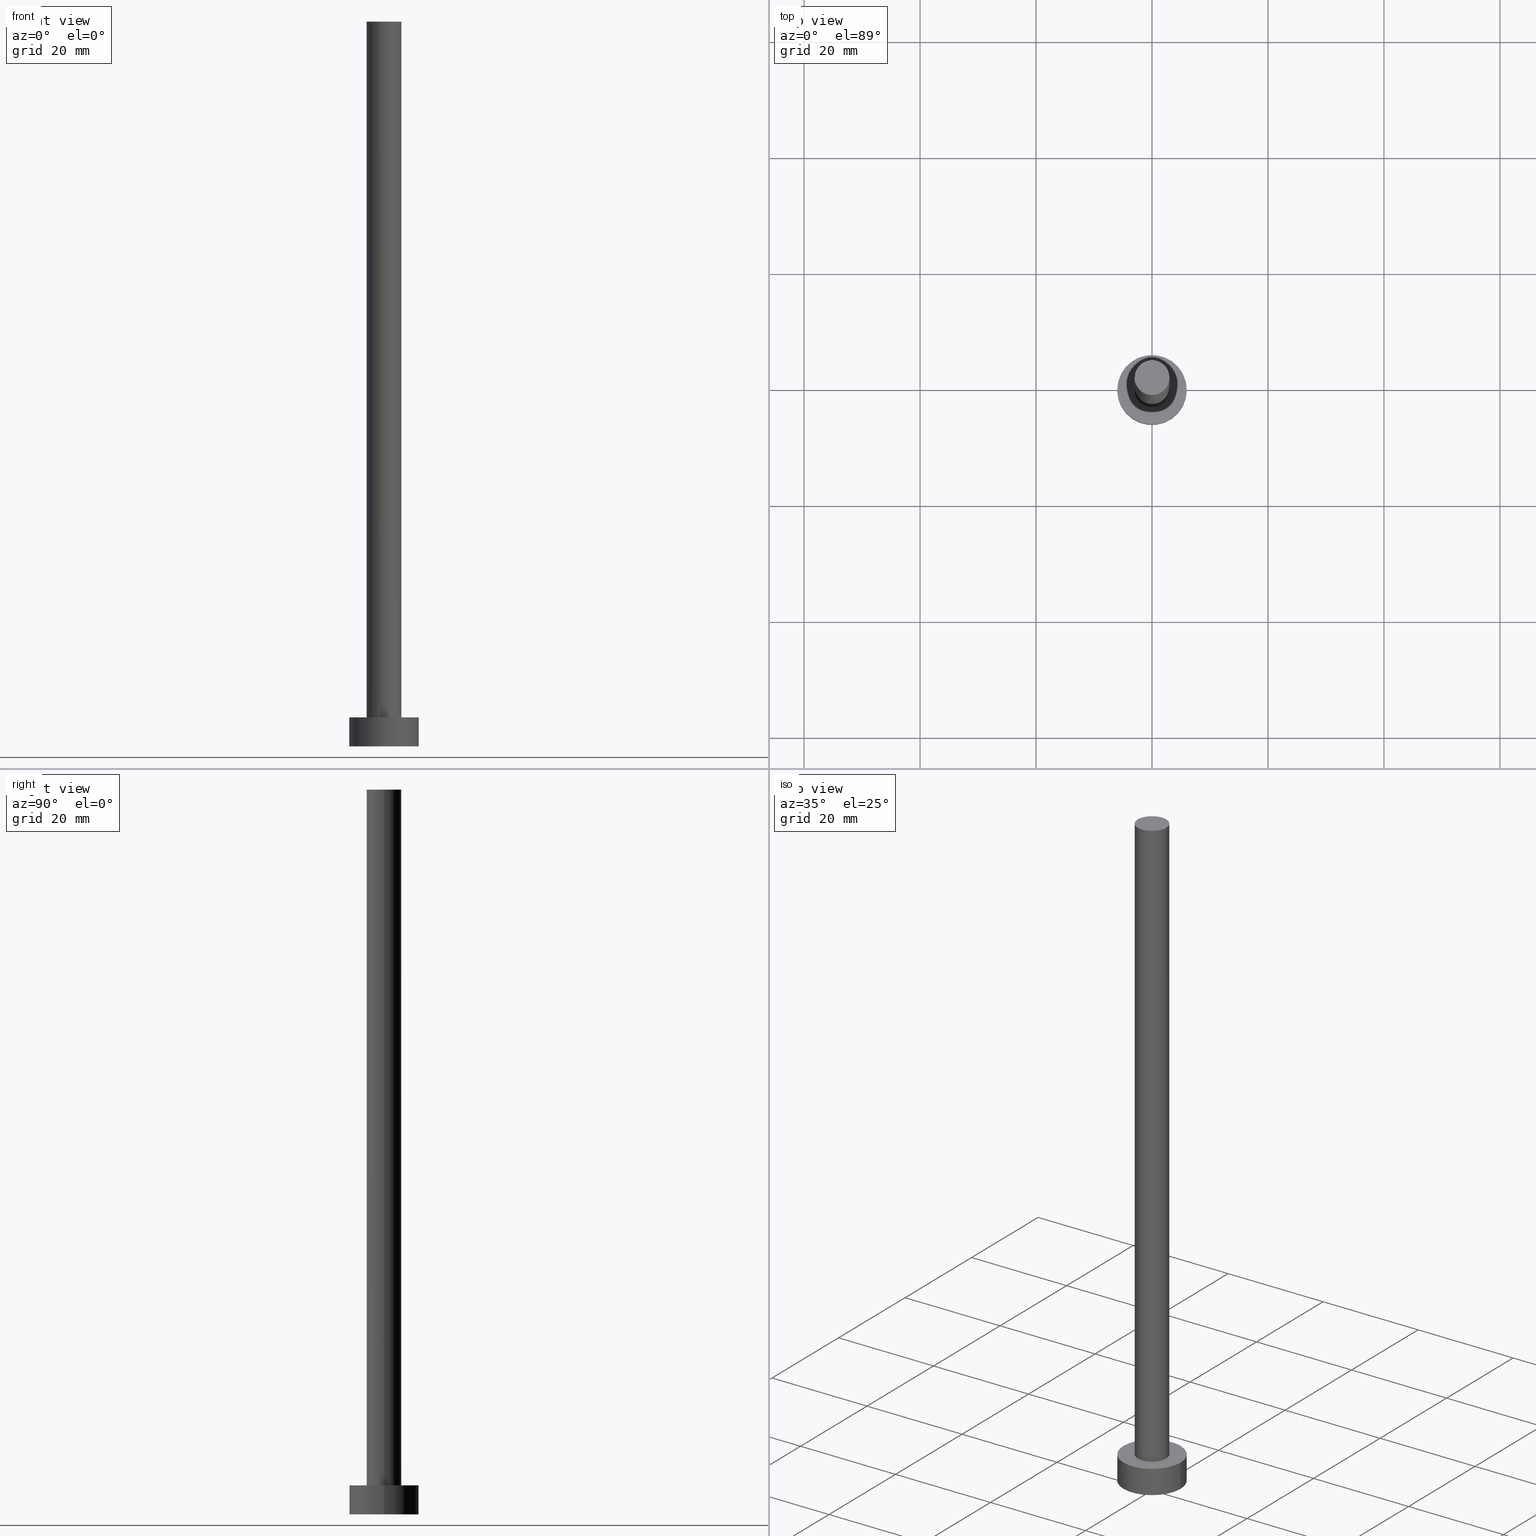
[diagram: canonical four-view strip — front | top / right | iso, engineering-drawing reading convention]
A machine part, canonical four-view strip (front | top / right | iso — engineering-drawing reading convention). The complete STEP part file that produces these views, byte-faithful:
ISO-10303-21;
HEADER;
FILE_DESCRIPTION (( 'STEP AP203' ),
    '1' );
FILE_NAME ('b072.STEP',
    '2023-02-12T12:19:38',
    ( '' ),
    ( '' ),
    'SwSTEP 2.0',
    'SolidWorks 2019',
    '' );
FILE_SCHEMA (( 'CONFIG_CONTROL_DESIGN' ));
ENDSEC;

DATA;
#1 = APPROVAL_DATE_TIME ( #70, #23 ) ;
#2 = CC_DESIGN_APPROVAL ( #199, ( #118 ) ) ;
#3 = CIRCLE ( 'NONE', #20, 3.000000000000000444 ) ;
#4 = DIRECTION ( 'NONE',  ( 0.000000000000000000, 0.000000000000000000, 1.000000000000000000 ) ) ;
#5 = ORIENTED_EDGE ( 'NONE', *, *, #74, .F. ) ;
#6 = DIRECTION ( 'NONE',  ( -0.000000000000000000, -0.000000000000000000, -1.000000000000000000 ) ) ;
#7 = CARTESIAN_POINT ( 'NONE',  ( 0.000000000000000000, 0.000000000000000000, 5.000000000000000000 ) ) ;
#8 = ORIENTED_EDGE ( 'NONE', *, *, #34, .F. ) ;
#9 = CC_DESIGN_PERSON_AND_ORGANIZATION_ASSIGNMENT ( #176, #235, ( #116 ) ) ;
#10 = CARTESIAN_POINT ( 'NONE',  ( 0.000000000000000000, 0.000000000000000000, 5.000000000000000000 ) ) ;
#11 = DIRECTION ( 'NONE',  ( 1.000000000000000000, 0.000000000000000000, 0.000000000000000000 ) ) ;
#12 = FACE_OUTER_BOUND ( 'NONE', #142, .T. ) ;
#13 = ADVANCED_FACE ( 'NONE', ( #167, #50 ), #203, .T. ) ;
#14 = DIRECTION ( 'NONE',  ( 1.000000000000000000, 0.000000000000000000, -0.000000000000000000 ) ) ;
#15 = DIRECTION ( 'NONE',  ( 0.000000000000000000, 0.000000000000000000, 1.000000000000000000 ) ) ;
#16 = AXIS2_PLACEMENT_3D ( 'NONE', #126, #26, #48 ) ;
#17 = COORDINATED_UNIVERSAL_TIME_OFFSET ( 1, 0, .AHEAD. ) ;
#18 = CALENDAR_DATE ( 2023, 12, 2 ) ;
#19 = EDGE_LOOP ( 'NONE', ( #98, #159, #242, #239 ) ) ;
#20 = AXIS2_PLACEMENT_3D ( 'NONE', #165, #101, #180 ) ;
#21 = APPLICATION_PROTOCOL_DEFINITION ( 'international standard', 'config_control_design', 1994, #125 ) ;
#22 = ORIENTED_EDGE ( 'NONE', *, *, #84, .F. ) ;
#23 = APPROVAL ( #40, 'NEUR�EN�' ) ;
#24 = VERTEX_POINT ( 'NONE', #86 ) ;
#25 =( GEOMETRIC_REPRESENTATION_CONTEXT ( 3 ) GLOBAL_UNCERTAINTY_ASSIGNED_CONTEXT ( ( #108 ) ) GLOBAL_UNIT_ASSIGNED_CONTEXT ( ( #170, #149, #191 ) ) REPRESENTATION_CONTEXT ( 'NONE', 'WORKASPACE' ) );
#26 = DIRECTION ( 'NONE',  ( 0.000000000000000000, 0.000000000000000000, 1.000000000000000000 ) ) ;
#27 = ORIENTED_EDGE ( 'NONE', *, *, #160, .T. ) ;
#28 = EDGE_LOOP ( 'NONE', ( #136, #27, #182, #8 ) ) ;
#29 = ORIENTED_EDGE ( 'NONE', *, *, #209, .T. ) ;
#30 = PRODUCT ( 'b072', 'b072', '', ( #252 ) ) ;
#31 = CARTESIAN_POINT ( 'NONE',  ( 0.000000000000000000, 0.000000000000000000, 125.0000000000000000 ) ) ;
#32 = AXIS2_PLACEMENT_3D ( 'NONE', #132, #15, #169 ) ;
#33 = CARTESIAN_POINT ( 'NONE',  ( 0.000000000000000000, 0.000000000000000000, 125.0000000000000000 ) ) ;
#34 = EDGE_CURVE ( 'NONE', #218, #121, #43, .T. ) ;
#35 = CARTESIAN_POINT ( 'NONE',  ( 6.000000000000000888, 7.347880794884120722E-16, 5.000000000000000000 ) ) ;
#36 = CARTESIAN_POINT ( 'NONE',  ( -3.000000000000000444, 0.000000000000000000, 5.000000000000000000 ) ) ;
#37 = AXIS2_PLACEMENT_3D ( 'NONE', #31, #91, #65 ) ;
#38 = PERSON_AND_ORGANIZATION ( #188, #254 ) ;
#39 = PERSON_AND_ORGANIZATION ( #188, #254 ) ;
#40 = APPROVAL_STATUS ( 'not_yet_approved' ) ;
#41 = EDGE_LOOP ( 'NONE', ( #145, #105, #202, #226 ) ) ;
#42 = PRODUCT_DEFINITION_FORMATION_WITH_SPECIFIED_SOURCE ( 'LIBOVOLN�', '', #30, .NOT_KNOWN. ) ;
#43 = LINE ( 'NONE', #82, #232 ) ;
#44 = EDGE_CURVE ( 'NONE', #163, #227, #141, .T. ) ;
#45 = DIRECTION ( 'NONE',  ( 1.000000000000000000, 0.000000000000000000, 0.000000000000000000 ) ) ;
#46 = CIRCLE ( 'NONE', #32, 3.000000000000000444 ) ;
#47 = PLANE ( 'NONE',  #231 ) ;
#48 = DIRECTION ( 'NONE',  ( 1.000000000000000000, 0.000000000000000000, 0.000000000000000000 ) ) ;
#49 = LOCAL_TIME ( 13, 19, 38.00000000000000000, #17 ) ;
#50 = FACE_OUTER_BOUND ( 'NONE', #185, .T. ) ;
#51 = CARTESIAN_POINT ( 'NONE',  ( 0.000000000000000000, 0.000000000000000000, 5.000000000000000000 ) ) ;
#52 = CARTESIAN_POINT ( 'NONE',  ( 6.000000000000000888, 7.347880794884120722E-16, 0.000000000000000000 ) ) ;
#53 = CARTESIAN_POINT ( 'NONE',  ( 3.000000000000000444, 3.673940397442060361E-16, 5.000000000000000000 ) ) ;
#54 = ADVANCED_FACE ( 'NONE', ( #241 ), #47, .F. ) ;
#55 = PERSON_AND_ORGANIZATION ( #188, #254 ) ;
#56 = PERSON_AND_ORGANIZATION_ROLE ( 'design_supplier' ) ;
#57 = COORDINATED_UNIVERSAL_TIME_OFFSET ( 1, 0, .AHEAD. ) ;
#58 = APPROVAL_DATE_TIME ( #94, #199 ) ;
#59 = ORIENTED_EDGE ( 'NONE', *, *, #90, .T. ) ;
#60 = DIRECTION ( 'NONE',  ( 0.000000000000000000, 0.000000000000000000, 1.000000000000000000 ) ) ;
#61 = CARTESIAN_POINT ( 'NONE',  ( 0.000000000000000000, 0.000000000000000000, 5.000000000000000000 ) ) ;
#62 = CC_DESIGN_DATE_AND_TIME_ASSIGNMENT ( #215, #138, ( #116 ) ) ;
#63 = DIRECTION ( 'NONE',  ( -0.000000000000000000, -0.000000000000000000, -1.000000000000000000 ) ) ;
#64 = VECTOR ( 'NONE', #110, 1000.000000000000000 ) ;
#65 = DIRECTION ( 'NONE',  ( -1.000000000000000000, 0.000000000000000000, 0.000000000000000000 ) ) ;
#66 = CARTESIAN_POINT ( 'NONE',  ( 0.000000000000000000, 0.000000000000000000, 0.000000000000000000 ) ) ;
#67 = DIRECTION ( 'NONE',  ( -0.000000000000000000, -0.000000000000000000, -1.000000000000000000 ) ) ;
#68 = LOCAL_TIME ( 13, 19, 38.00000000000000000, #57 ) ;
#69 = CARTESIAN_POINT ( 'NONE',  ( -6.000000000000000888, 0.000000000000000000, 5.000000000000000000 ) ) ;
#70 = DATE_AND_TIME ( #253, #106 ) ;
#71 = EDGE_CURVE ( 'NONE', #163, #237, #3, .T. ) ;
#72 = PERSON_AND_ORGANIZATION ( #188, #254 ) ;
#73 = AXIS2_PLACEMENT_3D ( 'NONE', #66, #187, #11 ) ;
#74 = EDGE_CURVE ( 'NONE', #121, #244, #251, .T. ) ;
#75 = SECURITY_CLASSIFICATION_LEVEL ( 'unclassified' ) ;
#76 = DESIGN_CONTEXT ( 'detailed design', #125, 'design' ) ;
#77 = MANIFOLD_SOLID_BREP ( 'P�idat vysunut�m3', #198 ) ;
#78 = PERSON_AND_ORGANIZATION ( #188, #254 ) ;
#79 = CC_DESIGN_DATE_AND_TIME_ASSIGNMENT ( #158, #194, ( #118 ) ) ;
#80 = DIRECTION ( 'NONE',  ( 1.000000000000000000, 0.000000000000000000, 0.000000000000000000 ) ) ;
#81 = EDGE_LOOP ( 'NONE', ( #5, #197 ) ) ;
#82 = CARTESIAN_POINT ( 'NONE',  ( -6.000000000000000888, 0.000000000000000000, 5.000000000000000000 ) ) ;
#83 = AXIS2_PLACEMENT_3D ( 'NONE', #247, #63, #113 ) ;
#84 = EDGE_CURVE ( 'NONE', #201, #227, #147, .T. ) ;
#85 = PRODUCT_DEFINITION_SHAPE ( 'NONE', 'NONE',  #116 ) ;
#86 = CARTESIAN_POINT ( 'NONE',  ( 6.000000000000000888, 7.347880794884120722E-16, 5.000000000000000000 ) ) ;
#87 = AXIS2_PLACEMENT_3D ( 'NONE', #7, #104, #186 ) ;
#88 = ORIENTED_EDGE ( 'NONE', *, *, #131, .F. ) ;
#89 = CYLINDRICAL_SURFACE ( 'NONE', #193, 3.000000000000000444 ) ;
#90 = EDGE_CURVE ( 'NONE', #218, #24, #184, .T. ) ;
#91 = DIRECTION ( 'NONE',  ( -0.000000000000000000, -0.000000000000000000, -1.000000000000000000 ) ) ;
#92 = ADVANCED_BREP_SHAPE_REPRESENTATION ( 'b072', ( #77, #211 ), #25 ) ;
#93 = CYLINDRICAL_SURFACE ( 'NONE', #83, 6.000000000000000888 ) ;
#94 = DATE_AND_TIME ( #134, #49 ) ;
#95 = PERSON_AND_ORGANIZATION ( #188, #254 ) ;
#96 = CC_DESIGN_APPROVAL ( #112, ( #116 ) ) ;
#97 = CALENDAR_DATE ( 2023, 12, 2 ) ;
#98 = ORIENTED_EDGE ( 'NONE', *, *, #160, .F. ) ;
#99 = APPLICATION_CONTEXT ( 'configuration controlled 3d designs of mechanical parts and assemblies' ) ;
#100 = EDGE_CURVE ( 'NONE', #237, #163, #164, .T. ) ;
#101 = DIRECTION ( 'NONE',  ( 0.000000000000000000, 0.000000000000000000, 1.000000000000000000 ) ) ;
#102 = AXIS2_PLACEMENT_3D ( 'NONE', #223, #124, #45 ) ;
#103 = ORIENTED_EDGE ( 'NONE', *, *, #71, .T. ) ;
#104 = DIRECTION ( 'NONE',  ( 0.000000000000000000, 0.000000000000000000, 1.000000000000000000 ) ) ;
#105 = ORIENTED_EDGE ( 'NONE', *, *, #71, .F. ) ;
#106 = LOCAL_TIME ( 13, 19, 38.00000000000000000, #133 ) ;
#107 = CARTESIAN_POINT ( 'NONE',  ( -6.000000000000000888, 0.000000000000000000, 0.000000000000000000 ) ) ;
#108 = UNCERTAINTY_MEASURE_WITH_UNIT (LENGTH_MEASURE( 1.000000000000000082E-05 ), #170, 'distance_accuracy_value', 'NONE');
#109 = PRODUCT_RELATED_PRODUCT_CATEGORY ( 'detail', '', ( #30 ) ) ;
#110 = DIRECTION ( 'NONE',  ( -0.000000000000000000, -0.000000000000000000, -1.000000000000000000 ) ) ;
#111 = DIRECTION ( 'NONE',  ( 0.000000000000000000, 0.000000000000000000, 1.000000000000000000 ) ) ;
#112 = APPROVAL ( #234, 'NEUR�EN�' ) ;
#113 = DIRECTION ( 'NONE',  ( -1.000000000000000000, 0.000000000000000000, 0.000000000000000000 ) ) ;
#114 = VECTOR ( 'NONE', #6, 1000.000000000000000 ) ;
#115 = CARTESIAN_POINT ( 'NONE',  ( 0.000000000000000000, 0.000000000000000000, 0.000000000000000000 ) ) ;
#116 = PRODUCT_DEFINITION ( 'NEZN�M�', '', #42, #76 ) ;
#117 = DIRECTION ( 'NONE',  ( 1.000000000000000000, 0.000000000000000000, 0.000000000000000000 ) ) ;
#118 = SECURITY_CLASSIFICATION ( '', '', #75 ) ;
#119 = APPROVAL_STATUS ( 'not_yet_approved' ) ;
#120 = CIRCLE ( 'NONE', #73, 6.000000000000000888 ) ;
#121 = VERTEX_POINT ( 'NONE', #107 ) ;
#122 = ORIENTED_EDGE ( 'NONE', *, *, #100, .F. ) ;
#123 = EDGE_LOOP ( 'NONE', ( #122, #29, #161, #177 ) ) ;
#124 = DIRECTION ( 'NONE',  ( 0.000000000000000000, 0.000000000000000000, 1.000000000000000000 ) ) ;
#125 = APPLICATION_CONTEXT ( 'configuration controlled 3d designs of mechanical parts and assemblies' ) ;
#126 = CARTESIAN_POINT ( 'NONE',  ( 0.000000000000000000, 0.000000000000000000, 125.0000000000000000 ) ) ;
#127 = CC_DESIGN_PERSON_AND_ORGANIZATION_ASSIGNMENT ( #214, #196, ( #118 ) ) ;
#128 = DIRECTION ( 'NONE',  ( 1.000000000000000000, 0.000000000000000000, 0.000000000000000000 ) ) ;
#129 = FACE_OUTER_BOUND ( 'NONE', #123, .T. ) ;
#130 = CARTESIAN_POINT ( 'NONE',  ( -3.000000000000000444, 0.000000000000000000, 125.0000000000000000 ) ) ;
#131 = EDGE_CURVE ( 'NONE', #227, #201, #46, .T. ) ;
#132 = CARTESIAN_POINT ( 'NONE',  ( 0.000000000000000000, 0.000000000000000000, 5.000000000000000000 ) ) ;
#133 = COORDINATED_UNIVERSAL_TIME_OFFSET ( 1, 0, .AHEAD. ) ;
#134 = CALENDAR_DATE ( 2023, 12, 2 ) ;
#135 = PERSON_AND_ORGANIZATION_ROLE ( 'design_owner' ) ;
#136 = ORIENTED_EDGE ( 'NONE', *, *, #146, .F. ) ;
#137 = CC_DESIGN_APPROVAL ( #23, ( #42 ) ) ;
#138 = DATE_TIME_ROLE ( 'creation_date' ) ;
#139 = AXIS2_PLACEMENT_3D ( 'NONE', #243, #60, #144 ) ;
#140 = ORIENTED_EDGE ( 'NONE', *, *, #146, .T. ) ;
#141 = LINE ( 'NONE', #225, #114 ) ;
#142 = EDGE_LOOP ( 'NONE', ( #103, #222 ) ) ;
#143 = APPROVAL_PERSON_ORGANIZATION ( #55, #112, #195 ) ;
#144 = DIRECTION ( 'NONE',  ( 1.000000000000000000, 0.000000000000000000, 0.000000000000000000 ) ) ;
#145 = ORIENTED_EDGE ( 'NONE', *, *, #209, .F. ) ;
#146 = EDGE_CURVE ( 'NONE', #24, #218, #190, .T. ) ;
#147 = CIRCLE ( 'NONE', #139, 3.000000000000000444 ) ;
#148 = CARTESIAN_POINT ( 'NONE',  ( 3.000000000000000444, 3.673940397442060361E-16, 125.0000000000000000 ) ) ;
#149 =( NAMED_UNIT ( * ) PLANE_ANGLE_UNIT ( ) SI_UNIT ( $, .RADIAN. ) );
#150 = DIRECTION ( 'NONE',  ( -1.000000000000000000, 0.000000000000000000, 0.000000000000000000 ) ) ;
#151 = LOCAL_TIME ( 13, 19, 38.00000000000000000, #236 ) ;
#152 = LINE ( 'NONE', #35, #224 ) ;
#153 = DIRECTION ( 'NONE',  ( 0.000000000000000000, 0.000000000000000000, 1.000000000000000000 ) ) ;
#154 = EDGE_CURVE ( 'NONE', #244, #121, #120, .T. ) ;
#155 = APPROVAL_DATE_TIME ( #178, #112 ) ;
#156 = SHAPE_DEFINITION_REPRESENTATION ( #85, #92 ) ;
#157 = APPROVAL_ROLE ( '' ) ;
#158 = DATE_AND_TIME ( #220, #68 ) ;
#159 = ORIENTED_EDGE ( 'NONE', *, *, #90, .F. ) ;
#160 = EDGE_CURVE ( 'NONE', #24, #244, #152, .T. ) ;
#161 = ORIENTED_EDGE ( 'NONE', *, *, #84, .T. ) ;
#162 = CC_DESIGN_PERSON_AND_ORGANIZATION_ASSIGNMENT ( #39, #135, ( #30 ) ) ;
#163 = VERTEX_POINT ( 'NONE', #130 ) ;
#164 = CIRCLE ( 'NONE', #16, 3.000000000000000444 ) ;
#165 = CARTESIAN_POINT ( 'NONE',  ( 0.000000000000000000, 0.000000000000000000, 125.0000000000000000 ) ) ;
#166 = CARTESIAN_POINT ( 'NONE',  ( 0.000000000000000000, 0.000000000000000000, 0.000000000000000000 ) ) ;
#167 = FACE_BOUND ( 'NONE', #245, .T. ) ;
#168 = ADVANCED_FACE ( 'NONE', ( #233 ), #173, .T. ) ;
#169 = DIRECTION ( 'NONE',  ( 1.000000000000000000, 0.000000000000000000, 0.000000000000000000 ) ) ;
#170 =( LENGTH_UNIT ( ) NAMED_UNIT ( * ) SI_UNIT ( .MILLI., .METRE. ) );
#171 = FACE_OUTER_BOUND ( 'NONE', #41, .T. ) ;
#172 = CC_DESIGN_SECURITY_CLASSIFICATION ( #118, ( #42 ) ) ;
#173 = CYLINDRICAL_SURFACE ( 'NONE', #205, 6.000000000000000888 ) ;
#174 = CC_DESIGN_PERSON_AND_ORGANIZATION_ASSIGNMENT ( #78, #56, ( #42 ) ) ;
#175 = LOCAL_TIME ( 13, 19, 38.00000000000000000, #217 ) ;
#176 = PERSON_AND_ORGANIZATION ( #188, #254 ) ;
#177 = ORIENTED_EDGE ( 'NONE', *, *, #44, .F. ) ;
#178 = DATE_AND_TIME ( #97, #175 ) ;
#179 = AXIS2_PLACEMENT_3D ( 'NONE', #248, #229, #14 ) ;
#180 = DIRECTION ( 'NONE',  ( 1.000000000000000000, 0.000000000000000000, 0.000000000000000000 ) ) ;
#181 = ADVANCED_FACE ( 'NONE', ( #171 ), #213, .T. ) ;
#182 = ORIENTED_EDGE ( 'NONE', *, *, #154, .T. ) ;
#183 = DIRECTION ( 'NONE',  ( -0.000000000000000000, -0.000000000000000000, -1.000000000000000000 ) ) ;
#184 = CIRCLE ( 'NONE', #210, 6.000000000000000888 ) ;
#185 = EDGE_LOOP ( 'NONE', ( #59, #140 ) ) ;
#186 = DIRECTION ( 'NONE',  ( 1.000000000000000000, 0.000000000000000000, -0.000000000000000000 ) ) ;
#187 = DIRECTION ( 'NONE',  ( 0.000000000000000000, 0.000000000000000000, 1.000000000000000000 ) ) ;
#188 = PERSON ( 'NEUR�EN�', 'NEUR�EN�', 'NEUR�EN�', ('NEUR�EN�'), ('NEUR�EN�'), ('NEUR�EN�') ) ;
#189 = CARTESIAN_POINT ( 'NONE',  ( 3.000000000000000444, 3.673940397442060361E-16, 125.0000000000000000 ) ) ;
#190 = CIRCLE ( 'NONE', #240, 6.000000000000000888 ) ;
#191 =( NAMED_UNIT ( * ) SI_UNIT ( $, .STERADIAN. ) SOLID_ANGLE_UNIT ( ) );
#192 = PLANE ( 'NONE',  #179 ) ;
#193 = AXIS2_PLACEMENT_3D ( 'NONE', #33, #67, #150 ) ;
#194 = DATE_TIME_ROLE ( 'classification_date' ) ;
#195 = APPROVAL_ROLE ( '' ) ;
#196 = PERSON_AND_ORGANIZATION_ROLE ( 'classification_officer' ) ;
#197 = ORIENTED_EDGE ( 'NONE', *, *, #154, .F. ) ;
#198 = CLOSED_SHELL ( 'NONE', ( #246, #250, #168, #13, #54, #181, #204 ) ) ;
#199 = APPROVAL ( #119, 'NEUR�EN�' ) ;
#200 = DIRECTION ( 'NONE',  ( 1.000000000000000000, 0.000000000000000000, -0.000000000000000000 ) ) ;
#201 = VERTEX_POINT ( 'NONE', #53 ) ;
#202 = ORIENTED_EDGE ( 'NONE', *, *, #44, .T. ) ;
#203 = PLANE ( 'NONE',  #87 ) ;
#204 = ADVANCED_FACE ( 'NONE', ( #12 ), #192, .T. ) ;
#205 = AXIS2_PLACEMENT_3D ( 'NONE', #10, #230, #208 ) ;
#206 = DIRECTION ( 'NONE',  ( 0.000000000000000000, 0.000000000000000000, 1.000000000000000000 ) ) ;
#207 = LINE ( 'NONE', #148, #64 ) ;
#208 = DIRECTION ( 'NONE',  ( -1.000000000000000000, 0.000000000000000000, 0.000000000000000000 ) ) ;
#209 = EDGE_CURVE ( 'NONE', #237, #201, #207, .T. ) ;
#210 = AXIS2_PLACEMENT_3D ( 'NONE', #61, #4, #80 ) ;
#211 = AXIS2_PLACEMENT_3D ( 'NONE', #115, #153, #117 ) ;
#212 = FACE_OUTER_BOUND ( 'NONE', #28, .T. ) ;
#213 = CYLINDRICAL_SURFACE ( 'NONE', #37, 3.000000000000000444 ) ;
#214 = PERSON_AND_ORGANIZATION ( #188, #254 ) ;
#215 = DATE_AND_TIME ( #18, #151 ) ;
#216 = APPROVAL_PERSON_ORGANIZATION ( #72, #199, #238 ) ;
#217 = COORDINATED_UNIVERSAL_TIME_OFFSET ( 1, 0, .AHEAD. ) ;
#218 = VERTEX_POINT ( 'NONE', #69 ) ;
#219 = APPROVAL_PERSON_ORGANIZATION ( #95, #23, #157 ) ;
#220 = CALENDAR_DATE ( 2023, 12, 2 ) ;
#221 = CC_DESIGN_PERSON_AND_ORGANIZATION_ASSIGNMENT ( #38, #255, ( #42 ) ) ;
#222 = ORIENTED_EDGE ( 'NONE', *, *, #100, .T. ) ;
#223 = CARTESIAN_POINT ( 'NONE',  ( 0.000000000000000000, 0.000000000000000000, 0.000000000000000000 ) ) ;
#224 = VECTOR ( 'NONE', #249, 1000.000000000000000 ) ;
#225 = CARTESIAN_POINT ( 'NONE',  ( -3.000000000000000444, 0.000000000000000000, 125.0000000000000000 ) ) ;
#226 = ORIENTED_EDGE ( 'NONE', *, *, #131, .T. ) ;
#227 = VERTEX_POINT ( 'NONE', #36 ) ;
#228 = APPLICATION_PROTOCOL_DEFINITION ( 'international standard', 'config_control_design', 1994, #99 ) ;
#229 = DIRECTION ( 'NONE',  ( 0.000000000000000000, 0.000000000000000000, 1.000000000000000000 ) ) ;
#230 = DIRECTION ( 'NONE',  ( -0.000000000000000000, -0.000000000000000000, -1.000000000000000000 ) ) ;
#231 = AXIS2_PLACEMENT_3D ( 'NONE', #166, #206, #200 ) ;
#232 = VECTOR ( 'NONE', #183, 1000.000000000000000 ) ;
#233 = FACE_OUTER_BOUND ( 'NONE', #19, .T. ) ;
#234 = APPROVAL_STATUS ( 'not_yet_approved' ) ;
#235 = PERSON_AND_ORGANIZATION_ROLE ( 'creator' ) ;
#236 = COORDINATED_UNIVERSAL_TIME_OFFSET ( 1, 0, .AHEAD. ) ;
#237 = VERTEX_POINT ( 'NONE', #189 ) ;
#238 = APPROVAL_ROLE ( '' ) ;
#239 = ORIENTED_EDGE ( 'NONE', *, *, #74, .T. ) ;
#240 = AXIS2_PLACEMENT_3D ( 'NONE', #51, #111, #128 ) ;
#241 = FACE_OUTER_BOUND ( 'NONE', #81, .T. ) ;
#242 = ORIENTED_EDGE ( 'NONE', *, *, #34, .T. ) ;
#243 = CARTESIAN_POINT ( 'NONE',  ( 0.000000000000000000, 0.000000000000000000, 5.000000000000000000 ) ) ;
#244 = VERTEX_POINT ( 'NONE', #52 ) ;
#245 = EDGE_LOOP ( 'NONE', ( #88, #22 ) ) ;
#246 = ADVANCED_FACE ( 'NONE', ( #129 ), #89, .T. ) ;
#247 = CARTESIAN_POINT ( 'NONE',  ( 0.000000000000000000, 0.000000000000000000, 5.000000000000000000 ) ) ;
#248 = CARTESIAN_POINT ( 'NONE',  ( 0.000000000000000000, 0.000000000000000000, 125.0000000000000000 ) ) ;
#249 = DIRECTION ( 'NONE',  ( -0.000000000000000000, -0.000000000000000000, -1.000000000000000000 ) ) ;
#250 = ADVANCED_FACE ( 'NONE', ( #212 ), #93, .T. ) ;
#251 = CIRCLE ( 'NONE', #102, 6.000000000000000888 ) ;
#252 = MECHANICAL_CONTEXT ( 'NONE', #99, 'mechanical' ) ;
#253 = CALENDAR_DATE ( 2023, 12, 2 ) ;
#254 = ORGANIZATION ( 'NEUR�EN�', 'NEUR�EN�', '' ) ;
#255 = PERSON_AND_ORGANIZATION_ROLE ( 'creator' ) ;
ENDSEC;
END-ISO-10303-21;
